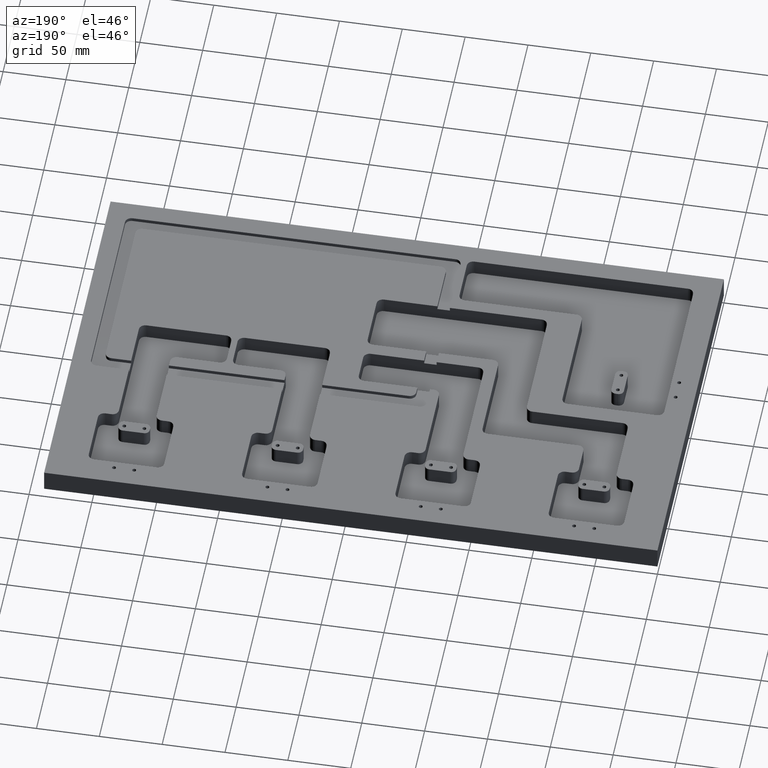
[diagram: clean part render]
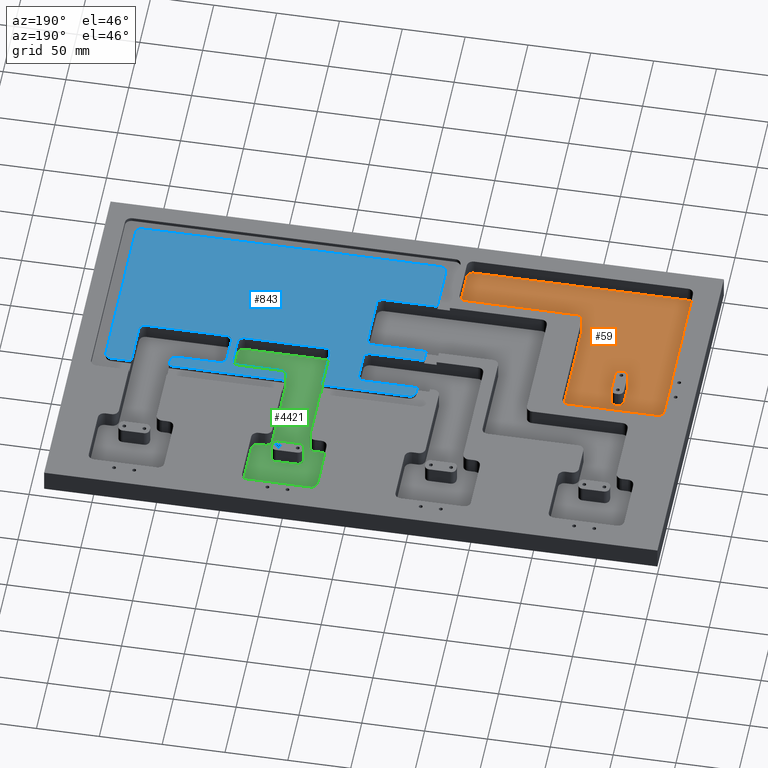
[diagram: same view with three faces highlighted in distinct colors, each labeled with its STEP entity id]
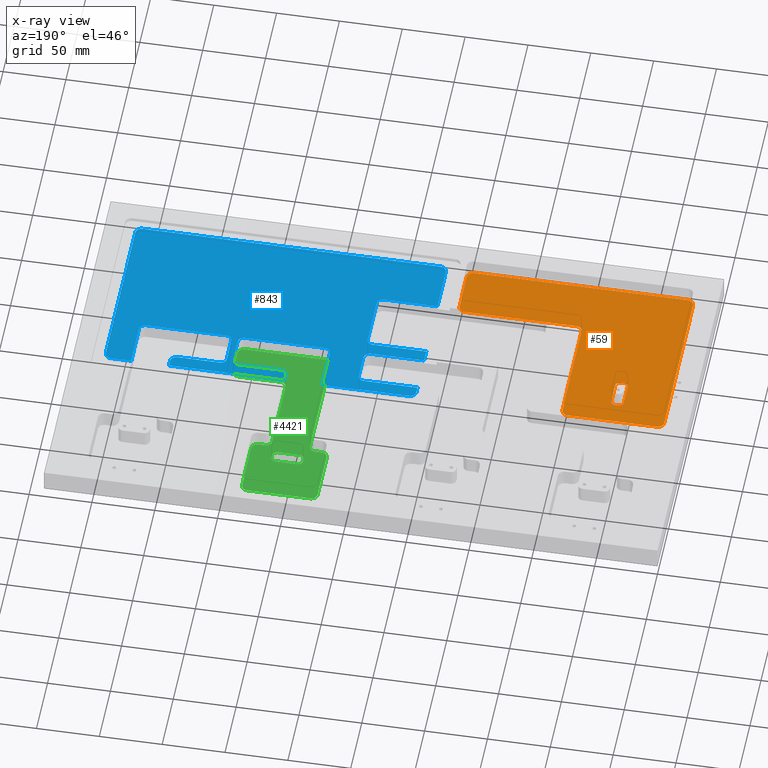
[diagram: x-ray of the same camera — body ghosted, the three highlighted faces saturated]
A machine part, auxiliary view with three faces highlighted in distinct colors.
The next image is the same camera in x-ray (body ghosted, the three faces saturated) — at least one of them is partly hidden behind the body in this view.
Their STEP definitions:

[orange] entity #59 — the highlighted planar face has unit normal (0, 0, 1).
#59 = ADVANCED_FACE ( 'NONE', ( #1551, #1282 ), #6637, .T. ) ;
#99 = VERTEX_POINT ( 'NONE', #3242 ) ;
#119 = LINE ( 'NONE', #342, #5362 ) ;
#121 = ORIENTED_EDGE ( 'NONE', *, *, #2589, .T. ) ;
#147 = VECTOR ( 'NONE', #4219, 1000.000000000000000 ) ;
#194 = CARTESIAN_POINT ( 'NONE',  ( 195.9999999999998300, 52.99999999999993600, 4.999999999999999100 ) ) ;
#342 = CARTESIAN_POINT ( 'NONE',  ( 200.9999999999998600, 57.99999999999993600, 4.999999999999999100 ) ) ;
#413 = DIRECTION ( 'NONE',  ( 0.0000000000000000000, -1.000000000000000000, 0.0000000000000000000 ) ) ;
#420 = VERTEX_POINT ( 'NONE', #2752 ) ;
#422 = CARTESIAN_POINT ( 'NONE',  ( 65.99999999999992900, 116.4999999999999900, 4.999999999999999100 ) ) ;
#591 = DIRECTION ( 'NONE',  ( -0.0000000000000000000, 1.000000000000000000, -0.0000000000000000000 ) ) ;
#607 = AXIS2_PLACEMENT_3D ( 'NONE', #3065, #4790, #1279 ) ;
#630 = AXIS2_PLACEMENT_3D ( 'NONE', #6329, #7447, #1537 ) ;
#720 = CARTESIAN_POINT ( 'NONE',  ( 65.99999999999992900, 133.5000000000000000, 4.999999999999999100 ) ) ;
#755 = AXIS2_PLACEMENT_3D ( 'NONE', #6579, #5427, #2431 ) ;
#757 = CIRCLE ( 'NONE', #755, 4.000000000000003600 ) ;
#768 = DIRECTION ( 'NONE',  ( 0.0000000000000000000, 0.0000000000000000000, 1.000000000000000000 ) ) ;
#788 = EDGE_CURVE ( 'NONE', #420, #6809, #5413, .T. ) ;
#899 = CARTESIAN_POINT ( 'NONE',  ( 61.99999999999993600, 116.4999999999999900, 4.999999999999999100 ) ) ;
#904 = AXIS2_PLACEMENT_3D ( 'NONE', #899, #976, #6197 ) ;
#926 = DIRECTION ( 'NONE',  ( -0.0000000000000000000, 1.000000000000000000, -0.0000000000000000000 ) ) ;
#976 = DIRECTION ( 'NONE',  ( -0.0000000000000000000, -0.0000000000000000000, -1.000000000000000000 ) ) ;
#1036 = EDGE_CURVE ( 'NONE', #4650, #6031, #7599, .T. ) ;
#1068 = ORIENTED_EDGE ( 'NONE', *, *, #7233, .T. ) ;
#1273 = CARTESIAN_POINT ( 'NONE',  ( 200.9999999999998600, 52.99999999999993600, 4.999999999999999100 ) ) ;
#1279 = DIRECTION ( 'NONE',  ( 1.000000000000000000, 0.0000000000000000000, 0.0000000000000000000 ) ) ;
#1282 = FACE_OUTER_BOUND ( 'NONE', #3665, .T. ) ;
#1321 = VECTOR ( 'NONE', #591, 1000.000000000000000 ) ;
#1352 = CARTESIAN_POINT ( 'NONE',  ( 101.9999999999999300, 62.99999999999994300, 4.999999999999999100 ) ) ;
#1403 = CARTESIAN_POINT ( 'NONE',  ( 59.99999999999992200, 133.5000000000000000, 4.999999999999999100 ) ) ;
#1508 = VERTEX_POINT ( 'NONE', #5834 ) ;
#1537 = DIRECTION ( 'NONE',  ( 1.000000000000000000, 0.0000000000000000000, 0.0000000000000000000 ) ) ;
#1551 = FACE_BOUND ( 'NONE', #5819, .T. ) ;
#1561 = CARTESIAN_POINT ( 'NONE',  ( 25.99999999999991100, 14.99999999999997900, 4.999999999999999100 ) ) ;
#1578 = VERTEX_POINT ( 'NONE', #1273 ) ;
#1678 = EDGE_CURVE ( 'NONE', #1508, #3447, #3464, .T. ) ;
#1687 = LINE ( 'NONE', #3216, #5739 ) ;
#1702 = CARTESIAN_POINT ( 'NONE',  ( 101.9999999999999300, 154.9999999999999700, 4.999999999999999100 ) ) ;
#1708 = LINE ( 'NONE', #4664, #5186 ) ;
#1771 = CARTESIAN_POINT ( 'NONE',  ( 55.99999999999992200, 133.5000000000000000, 4.999999999999999100 ) ) ;
#1896 = ORIENTED_EDGE ( 'NONE', *, *, #6327, .T. ) ;
#1961 = DIRECTION ( 'NONE',  ( 0.0000000000000000000, 0.0000000000000000000, 1.000000000000000000 ) ) ;
#2009 = DIRECTION ( 'NONE',  ( 1.000000000000000000, 0.0000000000000000000, 0.0000000000000000000 ) ) ;
#2047 = ORIENTED_EDGE ( 'NONE', *, *, #3963, .T. ) ;
#2061 = ORIENTED_EDGE ( 'NONE', *, *, #5574, .T. ) ;
#2062 = CARTESIAN_POINT ( 'NONE',  ( 106.9999999999999300, 62.99999999999994300, 4.999999999999999100 ) ) ;
#2072 = LINE ( 'NONE', #6146, #6130 ) ;
#2129 = VERTEX_POINT ( 'NONE', #7177 ) ;
#2131 = EDGE_CURVE ( 'NONE', #2129, #4040, #5579, .T. ) ;
#2170 = EDGE_CURVE ( 'NONE', #4159, #2554, #6670, .T. ) ;
#2369 = DIRECTION ( 'NONE',  ( 0.0000000000000000000, 1.000000000000000000, 0.0000000000000000000 ) ) ;
#2393 = CIRCLE ( 'NONE', #5831, 3.999999999999996400 ) ;
#2431 = DIRECTION ( 'NONE',  ( 1.000000000000000000, 0.0000000000000000000, 0.0000000000000000000 ) ) ;
#2482 = ORIENTED_EDGE ( 'NONE', *, *, #2170, .T. ) ;
#2518 = DIRECTION ( 'NONE',  ( -1.000000000000000000, -0.0000000000000000000, -0.0000000000000000000 ) ) ;
#2523 = AXIS2_PLACEMENT_3D ( 'NONE', #6708, #3742, #3157 ) ;
#2530 = CARTESIAN_POINT ( 'NONE',  ( 61.99999999999993600, 133.5000000000000000, 4.999999999999999100 ) ) ;
#2554 = VERTEX_POINT ( 'NONE', #4085 ) ;
#2581 = AXIS2_PLACEMENT_3D ( 'NONE', #1403, #2619, #4365 ) ;
#2589 = EDGE_CURVE ( 'NONE', #6809, #4159, #1708, .T. ) ;
#2619 = DIRECTION ( 'NONE',  ( -0.0000000000000000000, -0.0000000000000000000, -1.000000000000000000 ) ) ;
#2706 = DIRECTION ( 'NONE',  ( -0.0000000000000000000, -0.0000000000000000000, -1.000000000000000000 ) ) ;
#2721 = LINE ( 'NONE', #1702, #5590 ) ;
#2752 = CARTESIAN_POINT ( 'NONE',  ( 106.9999999999999300, 57.99999999999993600, 4.999999999999999100 ) ) ;
#2760 = CARTESIAN_POINT ( 'NONE',  ( 25.99999999999985800, 155.0000000000000000, 4.999999999999999100 ) ) ;
#2762 = VERTEX_POINT ( 'NONE', #720 ) ;
#2763 = VECTOR ( 'NONE', #413, 1000.000000000000000 ) ;
#2924 = ORIENTED_EDGE ( 'NONE', *, *, #6060, .T. ) ;
#2945 = ORIENTED_EDGE ( 'NONE', *, *, #4122, .T. ) ;
#3016 = AXIS2_PLACEMENT_3D ( 'NONE', #194, #768, #2009 ) ;
#3065 = CARTESIAN_POINT ( 'NONE',  ( 195.9999999999998300, 19.99999999999999600, 4.999999999999999100 ) ) ;
#3074 = CARTESIAN_POINT ( 'NONE',  ( 101.9999999999999300, 57.99999999999993600, 4.999999999999999100 ) ) ;
#3113 = DIRECTION ( 'NONE',  ( -1.387778780781444500E-015, -1.000000000000000000, -0.0000000000000000000 ) ) ;
#3157 = DIRECTION ( 'NONE',  ( 1.000000000000000000, 0.0000000000000000000, 0.0000000000000000000 ) ) ;
#3216 = CARTESIAN_POINT ( 'NONE',  ( 55.99999999999990100, 112.4999999999999900, 4.999999999999999100 ) ) ;
#3221 = ORIENTED_EDGE ( 'NONE', *, *, #1036, .T. ) ;
#3242 = CARTESIAN_POINT ( 'NONE',  ( 55.99999999999990100, 116.4999999999999900, 4.999999999999999100 ) ) ;
#3257 = CIRCLE ( 'NONE', #4447, 5.000000000000000900 ) ;
#3407 = ORIENTED_EDGE ( 'NONE', *, *, #6566, .F. ) ;
#3447 = VERTEX_POINT ( 'NONE', #6455 ) ;
#3464 = LINE ( 'NONE', #4231, #4171 ) ;
#3475 = DIRECTION ( 'NONE',  ( 1.000000000000000000, 0.0000000000000000000, 0.0000000000000000000 ) ) ;
#3508 = ORIENTED_EDGE ( 'NONE', *, *, #6168, .T. ) ;
#3606 = CIRCLE ( 'NONE', #3016, 5.000000000000004400 ) ;
#3665 = EDGE_LOOP ( 'NONE', ( #121, #2482, #2945, #3221, #4405, #2924, #2061, #2047, #4450, #6462, #6760, #6902 ) ) ;
#3685 = ORIENTED_EDGE ( 'NONE', *, *, #3786, .T. ) ;
#3742 = DIRECTION ( 'NONE',  ( 0.0000000000000000000, 0.0000000000000000000, 1.000000000000000000 ) ) ;
#3745 = EDGE_CURVE ( 'NONE', #1578, #6629, #3606, .T. ) ;
#3755 = VERTEX_POINT ( 'NONE', #7313 ) ;
#3766 = EDGE_CURVE ( 'NONE', #5251, #99, #1687, .T. ) ;
#3786 = EDGE_CURVE ( 'NONE', #7464, #4040, #4137, .T. ) ;
#3817 = EDGE_CURVE ( 'NONE', #3755, #1578, #119, .T. ) ;
#3831 = EDGE_CURVE ( 'NONE', #6031, #6993, #4607, .T. ) ;
#3963 = EDGE_CURVE ( 'NONE', #6689, #3755, #4226, .T. ) ;
#4040 = VERTEX_POINT ( 'NONE', #4816 ) ;
#4056 = LINE ( 'NONE', #5837, #1321 ) ;
#4069 = AXIS2_PLACEMENT_3D ( 'NONE', #5538, #1961, #4277 ) ;
#4083 = DIRECTION ( 'NONE',  ( -1.000000000000000000, 3.426614273534430700E-016, 0.0000000000000000000 ) ) ;
#4085 = CARTESIAN_POINT ( 'NONE',  ( 96.99999999999991500, 154.9999999999999700, 4.999999999999999100 ) ) ;
#4112 = VERTEX_POINT ( 'NONE', #1561 ) ;
#4122 = EDGE_CURVE ( 'NONE', #2554, #4650, #2721, .T. ) ;
#4137 = CIRCLE ( 'NONE', #904, 3.999999999999996400 ) ;
#4159 = VERTEX_POINT ( 'NONE', #6472 ) ;
#4171 = VECTOR ( 'NONE', #2518, 1000.000000000000000 ) ;
#4219 = DIRECTION ( 'NONE',  ( 1.000000000000000000, 0.0000000000000000000, 0.0000000000000000000 ) ) ;
#4226 = CIRCLE ( 'NONE', #607, 5.000000000000004400 ) ;
#4231 = CARTESIAN_POINT ( 'NONE',  ( 55.99999999999992900, 137.5000000000000000, 4.999999999999999100 ) ) ;
#4277 = DIRECTION ( 'NONE',  ( 1.000000000000000000, 0.0000000000000000000, -0.0000000000000000000 ) ) ;
#4365 = DIRECTION ( 'NONE',  ( 1.000000000000000000, 0.0000000000000000000, 0.0000000000000000000 ) ) ;
#4379 = DIRECTION ( 'NONE',  ( 1.000000000000000000, 0.0000000000000000000, 0.0000000000000000000 ) ) ;
#4405 = ORIENTED_EDGE ( 'NONE', *, *, #3831, .T. ) ;
#4447 = AXIS2_PLACEMENT_3D ( 'NONE', #6412, #4671, #3475 ) ;
#4450 = ORIENTED_EDGE ( 'NONE', *, *, #3817, .T. ) ;
#4607 = LINE ( 'NONE', #5701, #2763 ) ;
#4650 = VERTEX_POINT ( 'NONE', #2760 ) ;
#4656 = CARTESIAN_POINT ( 'NONE',  ( 195.9999999999998300, 57.99999999999993600, 4.999999999999999100 ) ) ;
#4664 = CARTESIAN_POINT ( 'NONE',  ( 101.9999999999999300, 95.00000000000001400, 4.999999999999999100 ) ) ;
#4671 = DIRECTION ( 'NONE',  ( 0.0000000000000000000, 0.0000000000000000000, 1.000000000000000000 ) ) ;
#4718 = CIRCLE ( 'NONE', #2581, 3.999999999999996400 ) ;
#4790 = DIRECTION ( 'NONE',  ( 0.0000000000000000000, 0.0000000000000000000, 1.000000000000000000 ) ) ;
#4808 = CARTESIAN_POINT ( 'NONE',  ( 195.9999999999998300, 14.99999999999999800, 4.999999999999999100 ) ) ;
#4816 = CARTESIAN_POINT ( 'NONE',  ( 61.99999999999993600, 112.4999999999999900, 4.999999999999999100 ) ) ;
#5186 = VECTOR ( 'NONE', #2369, 1000.000000000000000 ) ;
#5242 = CARTESIAN_POINT ( 'NONE',  ( 20.99999999999985800, 150.0000000000000000, 4.999999999999999100 ) ) ;
#5251 = VERTEX_POINT ( 'NONE', #1771 ) ;
#5261 = LINE ( 'NONE', #3074, #5357 ) ;
#5312 = ORIENTED_EDGE ( 'NONE', *, *, #2131, .F. ) ;
#5357 = VECTOR ( 'NONE', #5507, 1000.000000000000000 ) ;
#5362 = VECTOR ( 'NONE', #926, 1000.000000000000000 ) ;
#5382 = CARTESIAN_POINT ( 'NONE',  ( 20.99999999999985800, 19.99999999999998900, 4.999999999999999100 ) ) ;
#5413 = CIRCLE ( 'NONE', #6320, 5.000000000000004400 ) ;
#5427 = DIRECTION ( 'NONE',  ( -0.0000000000000000000, -0.0000000000000000000, -1.000000000000000000 ) ) ;
#5507 = DIRECTION ( 'NONE',  ( -1.000000000000000000, -0.0000000000000000000, -0.0000000000000000000 ) ) ;
#5534 = ORIENTED_EDGE ( 'NONE', *, *, #3766, .F. ) ;
#5538 = CARTESIAN_POINT ( 'NONE',  ( 0.0000000000000000000, 0.0000000000000000000, 4.999999999999999100 ) ) ;
#5574 = EDGE_CURVE ( 'NONE', #4112, #6689, #2072, .T. ) ;
#5579 = LINE ( 'NONE', #5998, #147 ) ;
#5590 = VECTOR ( 'NONE', #4083, 1000.000000000000000 ) ;
#5701 = CARTESIAN_POINT ( 'NONE',  ( 20.99999999999985800, 155.0000000000000000, 4.999999999999999100 ) ) ;
#5739 = VECTOR ( 'NONE', #3113, 1000.000000000000000 ) ;
#5819 = EDGE_LOOP ( 'NONE', ( #3407, #3685, #5312, #3508, #5534, #1896, #5908, #1068 ) ) ;
#5831 = AXIS2_PLACEMENT_3D ( 'NONE', #2530, #2706, #6183 ) ;
#5834 = CARTESIAN_POINT ( 'NONE',  ( 61.99999999999993600, 137.5000000000000000, 4.999999999999999100 ) ) ;
#5837 = CARTESIAN_POINT ( 'NONE',  ( 65.99999999999992900, 137.5000000000000000, 4.999999999999999100 ) ) ;
#5908 = ORIENTED_EDGE ( 'NONE', *, *, #1678, .F. ) ;
#5998 = CARTESIAN_POINT ( 'NONE',  ( 55.99999999999990100, 112.4999999999999900, 4.999999999999999100 ) ) ;
#6031 = VERTEX_POINT ( 'NONE', #5242 ) ;
#6060 = EDGE_CURVE ( 'NONE', #6993, #4112, #3257, .T. ) ;
#6087 = DIRECTION ( 'NONE',  ( 1.000000000000000000, 1.060108790874715600E-016, -0.0000000000000000000 ) ) ;
#6130 = VECTOR ( 'NONE', #6087, 1000.000000000000000 ) ;
#6146 = CARTESIAN_POINT ( 'NONE',  ( 200.9999999999998600, 14.99999999999999800, 4.999999999999999100 ) ) ;
#6168 = EDGE_CURVE ( 'NONE', #2129, #99, #757, .T. ) ;
#6183 = DIRECTION ( 'NONE',  ( 1.000000000000000000, 0.0000000000000000000, 0.0000000000000000000 ) ) ;
#6197 = DIRECTION ( 'NONE',  ( 1.000000000000000000, 0.0000000000000000000, 0.0000000000000000000 ) ) ;
#6320 = AXIS2_PLACEMENT_3D ( 'NONE', #2062, #6742, #4379 ) ;
#6327 = EDGE_CURVE ( 'NONE', #5251, #3447, #4718, .T. ) ;
#6329 = CARTESIAN_POINT ( 'NONE',  ( 25.99999999999985800, 150.0000000000000000, 4.999999999999999100 ) ) ;
#6412 = CARTESIAN_POINT ( 'NONE',  ( 25.99999999999985800, 19.99999999999997900, 4.999999999999999100 ) ) ;
#6455 = CARTESIAN_POINT ( 'NONE',  ( 59.99999999999992200, 137.5000000000000000, 4.999999999999999100 ) ) ;
#6462 = ORIENTED_EDGE ( 'NONE', *, *, #3745, .T. ) ;
#6472 = CARTESIAN_POINT ( 'NONE',  ( 101.9999999999999300, 149.9999999999999700, 4.999999999999999100 ) ) ;
#6566 = EDGE_CURVE ( 'NONE', #7464, #2762, #4056, .T. ) ;
#6579 = CARTESIAN_POINT ( 'NONE',  ( 59.99999999999990100, 116.4999999999999900, 4.999999999999999100 ) ) ;
#6629 = VERTEX_POINT ( 'NONE', #4656 ) ;
#6637 = PLANE ( 'NONE',  #4069 ) ;
#6670 = CIRCLE ( 'NONE', #2523, 5.000000000000004400 ) ;
#6689 = VERTEX_POINT ( 'NONE', #4808 ) ;
#6708 = CARTESIAN_POINT ( 'NONE',  ( 96.99999999999991500, 149.9999999999999700, 4.999999999999999100 ) ) ;
#6742 = DIRECTION ( 'NONE',  ( -0.0000000000000000000, -0.0000000000000000000, -1.000000000000000000 ) ) ;
#6760 = ORIENTED_EDGE ( 'NONE', *, *, #7189, .T. ) ;
#6809 = VERTEX_POINT ( 'NONE', #1352 ) ;
#6902 = ORIENTED_EDGE ( 'NONE', *, *, #788, .T. ) ;
#6993 = VERTEX_POINT ( 'NONE', #5382 ) ;
#7177 = CARTESIAN_POINT ( 'NONE',  ( 59.99999999999990100, 112.4999999999999900, 4.999999999999999100 ) ) ;
#7189 = EDGE_CURVE ( 'NONE', #6629, #420, #5261, .T. ) ;
#7233 = EDGE_CURVE ( 'NONE', #1508, #2762, #2393, .T. ) ;
#7313 = CARTESIAN_POINT ( 'NONE',  ( 200.9999999999998600, 20.00000000000001100, 4.999999999999999100 ) ) ;
#7447 = DIRECTION ( 'NONE',  ( 0.0000000000000000000, 0.0000000000000000000, 1.000000000000000000 ) ) ;
#7464 = VERTEX_POINT ( 'NONE', #422 ) ;
#7599 = CIRCLE ( 'NONE', #630, 5.000000000000000900 ) ;

[blue] entity #843 — the highlighted planar face has unit normal (0, 0, -1).
#7 = CARTESIAN_POINT ( 'NONE',  ( 319.9999999999999400, 167.9999999999999700, 18.00000000000000000 ) ) ;
#9 = EDGE_CURVE ( 'NONE', #2472, #195, #273, .T. ) ;
#35 = ORIENTED_EDGE ( 'NONE', *, *, #3648, .T. ) ;
#36 = LINE ( 'NONE', #5014, #1962 ) ;
#68 = CARTESIAN_POINT ( 'NONE',  ( 258.4999999999999400, 112.9999999999999400, 18.00000000000000000 ) ) ;
#81 = EDGE_CURVE ( 'NONE', #2159, #228, #1275, .T. ) ;
#82 = EDGE_CURVE ( 'NONE', #5206, #5906, #1644, .T. ) ;
#125 = LINE ( 'NONE', #4823, #1957 ) ;
#138 = VECTOR ( 'NONE', #7466, 1000.000000000000000 ) ;
#162 = VECTOR ( 'NONE', #5691, 1000.000000000000000 ) ;
#192 = ORIENTED_EDGE ( 'NONE', *, *, #3500, .F. ) ;
#195 = VERTEX_POINT ( 'NONE', #407 ) ;
#196 = DIRECTION ( 'NONE',  ( -1.000000000000000000, 0.0000000000000000000, 0.0000000000000000000 ) ) ;
#218 = DIRECTION ( 'NONE',  ( 1.940949343750273800E-016, -1.000000000000000000, 0.0000000000000000000 ) ) ;
#228 = VERTEX_POINT ( 'NONE', #1069 ) ;
#235 = AXIS2_PLACEMENT_3D ( 'NONE', #5923, #7075, #1260 ) ;
#257 = CIRCLE ( 'NONE', #3400, 5.000000000000004400 ) ;
#264 = DIRECTION ( 'NONE',  ( -0.0000000000000000000, 1.000000000000000000, -0.0000000000000000000 ) ) ;
#273 = LINE ( 'NONE', #6133, #6800 ) ;
#313 = EDGE_CURVE ( 'NONE', #474, #5070, #2549, .T. ) ;
#331 = CIRCLE ( 'NONE', #1499, 5.000000000000004400 ) ;
#352 = ORIENTED_EDGE ( 'NONE', *, *, #6667, .F. ) ;
#355 = DIRECTION ( 'NONE',  ( 1.000000000000000000, -3.776268791242031300E-016, -0.0000000000000000000 ) ) ;
#407 = CARTESIAN_POINT ( 'NONE',  ( 358.5000000000000000, 127.9999999999999700, 18.00000000000000000 ) ) ;
#436 = VECTOR ( 'NONE', #264, 1000.000000000000000 ) ;
#474 = VERTEX_POINT ( 'NONE', #2908 ) ;
#475 = CARTESIAN_POINT ( 'NONE',  ( 289.9999999999999400, 167.9999999999999700, 18.00000000000000000 ) ) ;
#502 = EDGE_CURVE ( 'NONE', #5248, #195, #257, .T. ) ;
#521 = VECTOR ( 'NONE', #5697, 1000.000000000000000 ) ;
#588 = CIRCLE ( 'NONE', #3172, 5.000000000000004400 ) ;
#654 = AXIS2_PLACEMENT_3D ( 'NONE', #2407, #7129, #4170 ) ;
#673 = EDGE_CURVE ( 'NONE', #5955, #4321, #1916, .T. ) ;
#692 = AXIS2_PLACEMENT_3D ( 'NONE', #68, #4144, #3022 ) ;
#694 = DIRECTION ( 'NONE',  ( 1.000000000000000000, 0.0000000000000000000, 0.0000000000000000000 ) ) ;
#707 = DIRECTION ( 'NONE',  ( 1.000000000000000000, 3.776268791242031300E-016, 0.0000000000000000000 ) ) ;
#712 = CARTESIAN_POINT ( 'NONE',  ( 215.9999999999998300, 167.9999999999999700, 18.00000000000000000 ) ) ;
#722 = CARTESIAN_POINT ( 'NONE',  ( 220.9999999999998600, 25.00000000000000000, 18.00000000000000000 ) ) ;
#742 = CARTESIAN_POINT ( 'NONE',  ( 215.9999999999998300, 167.9999999999999700, 18.00000000000000000 ) ) ;
#771 = VECTOR ( 'NONE', #5474, 1000.000000000000000 ) ;
#827 = VERTEX_POINT ( 'NONE', #6108 ) ;
#842 = AXIS2_PLACEMENT_3D ( 'NONE', #5301, #1207, #5326 ) ;
#843 = ADVANCED_FACE ( 'NONE', ( #3915 ), #3747, .F. ) ;
#845 = EDGE_CURVE ( 'NONE', #2299, #4410, #7347, .T. ) ;
#856 = ORIENTED_EDGE ( 'NONE', *, *, #313, .T. ) ;
#876 = VECTOR ( 'NONE', #5547, 1000.000000000000000 ) ;
#893 = CARTESIAN_POINT ( 'NONE',  ( 442.0000000000000000, 132.9999999999999400, 18.00000000000000000 ) ) ;
#918 = CARTESIAN_POINT ( 'NONE',  ( 215.9999999999998300, 127.9999999999999400, 18.00000000000000000 ) ) ;
#948 = VECTOR ( 'NONE', #3117, 1000.000000000000000 ) ;
#975 = EDGE_LOOP ( 'NONE', ( #35, #6095, #856, #7409, #3460, #2321, #999, #192, #1851, #352, #1088, #7251, #5189, #3137, #3596, #1467, #6340, #5260, #4916, #1572, #6110, #7428, #6633, #4859, #7323, #2035, #6407, #4498, #3098, #2337, #5997, #3694, #4275, #6569, #1090, #5738, #1846, #6488, #5420, #3110 ) ) ;
#999 = ORIENTED_EDGE ( 'NONE', *, *, #2879, .T. ) ;
#1011 = VERTEX_POINT ( 'NONE', #4198 ) ;
#1032 = DIRECTION ( 'NONE',  ( -0.0000000000000000000, -0.0000000000000000000, 1.000000000000000000 ) ) ;
#1039 = CARTESIAN_POINT ( 'NONE',  ( 412.0000000000000000, 227.9999999999999700, 18.00000000000000000 ) ) ;
#1054 = CARTESIAN_POINT ( 'NONE',  ( 215.9999999999998600, 67.99999999999994300, 18.00000000000000000 ) ) ;
#1066 = VECTOR ( 'NONE', #4556, 1000.000000000000000 ) ;
#1069 = CARTESIAN_POINT ( 'NONE',  ( 263.4999999999999400, 152.9999999999999700, 18.00000000000000000 ) ) ;
#1076 = EDGE_CURVE ( 'NONE', #4968, #6045, #7420, .T. ) ;
#1088 = ORIENTED_EDGE ( 'NONE', *, *, #2089, .T. ) ;
#1090 = ORIENTED_EDGE ( 'NONE', *, *, #6544, .T. ) ;
#1098 = CARTESIAN_POINT ( 'NONE',  ( 412.0000000000000000, 162.9999999999999700, 18.00000000000000000 ) ) ;
#1101 = CARTESIAN_POINT ( 'NONE',  ( 320.0000000000000000, 227.9999999999999700, 18.00000000000000000 ) ) ;
#1145 = EDGE_CURVE ( 'NONE', #7615, #4357, #4369, .T. ) ;
#1192 = CARTESIAN_POINT ( 'NONE',  ( 358.5000000000000000, 152.9999999999999700, 18.00000000000000000 ) ) ;
#1207 = DIRECTION ( 'NONE',  ( 0.0000000000000000000, 0.0000000000000000000, -1.000000000000000000 ) ) ;
#1226 = LINE ( 'NONE', #4264, #771 ) ;
#1232 = EDGE_CURVE ( 'NONE', #1011, #6983, #1262, .T. ) ;
#1245 = CIRCLE ( 'NONE', #3109, 5.000000000000004400 ) ;
#1260 = DIRECTION ( 'NONE',  ( -1.000000000000000000, 0.0000000000000000000, 0.0000000000000000000 ) ) ;
#1262 = LINE ( 'NONE', #1039, #1066 ) ;
#1275 = CIRCLE ( 'NONE', #7248, 5.000000000000004400 ) ;
#1307 = AXIS2_PLACEMENT_3D ( 'NONE', #2460, #6587, #5485 ) ;
#1332 = LINE ( 'NONE', #2990, #6756 ) ;
#1376 = EDGE_CURVE ( 'NONE', #2472, #1787, #4361, .T. ) ;
#1467 = ORIENTED_EDGE ( 'NONE', *, *, #5722, .T. ) ;
#1479 = VERTEX_POINT ( 'NONE', #1694 ) ;
#1497 = LINE ( 'NONE', #2516, #3337 ) ;
#1499 = AXIS2_PLACEMENT_3D ( 'NONE', #5443, #2444, #1914 ) ;
#1548 = VERTEX_POINT ( 'NONE', #6540 ) ;
#1572 = ORIENTED_EDGE ( 'NONE', *, *, #4468, .T. ) ;
#1613 = CARTESIAN_POINT ( 'NONE',  ( 462.9999999999999400, 30.00000000000000000, 18.00000000000000000 ) ) ;
#1614 = CARTESIAN_POINT ( 'NONE',  ( 407.0000000000000000, 157.9999999999999700, 18.00000000000000000 ) ) ;
#1635 = DIRECTION ( 'NONE',  ( -1.000000000000000000, 0.0000000000000000000, 0.0000000000000000000 ) ) ;
#1644 = LINE ( 'NONE', #4952, #436 ) ;
#1656 = EDGE_CURVE ( 'NONE', #1858, #827, #2615, .T. ) ;
#1694 = CARTESIAN_POINT ( 'NONE',  ( 320.0000000000000000, 162.9999999999999700, 18.00000000000000000 ) ) ;
#1695 = LINE ( 'NONE', #7170, #4984 ) ;
#1715 = DIRECTION ( 'NONE',  ( -0.0000000000000000000, 1.000000000000000000, -0.0000000000000000000 ) ) ;
#1723 = EDGE_CURVE ( 'NONE', #7380, #6983, #1245, .T. ) ;
#1744 = CARTESIAN_POINT ( 'NONE',  ( 358.5000000000000000, 132.9999999999999700, 18.00000000000000000 ) ) ;
#1779 = LINE ( 'NONE', #712, #3428 ) ;
#1787 = VERTEX_POINT ( 'NONE', #7413 ) ;
#1846 = ORIENTED_EDGE ( 'NONE', *, *, #502, .T. ) ;
#1851 = ORIENTED_EDGE ( 'NONE', *, *, #673, .T. ) ;
#1855 = VECTOR ( 'NONE', #3792, 1000.000000000000000 ) ;
#1858 = VERTEX_POINT ( 'NONE', #1054 ) ;
#1906 = CARTESIAN_POINT ( 'NONE',  ( 457.9999999999999400, 25.00000000000000000, 18.00000000000000000 ) ) ;
#1914 = DIRECTION ( 'NONE',  ( -1.000000000000000000, 0.0000000000000000000, 0.0000000000000000000 ) ) ;
#1916 = LINE ( 'NONE', #6032, #6432 ) ;
#1957 = VECTOR ( 'NONE', #6047, 1000.000000000000000 ) ;
#1962 = VECTOR ( 'NONE', #4571, 1000.000000000000000 ) ;
#2035 = ORIENTED_EDGE ( 'NONE', *, *, #2697, .F. ) ;
#2076 = EDGE_CURVE ( 'NONE', #7615, #7445, #2695, .T. ) ;
#2089 = EDGE_CURVE ( 'NONE', #3582, #6675, #7582, .T. ) ;
#2126 = CIRCLE ( 'NONE', #4870, 5.000000000000004400 ) ;
#2150 = VERTEX_POINT ( 'NONE', #1906 ) ;
#2152 = CIRCLE ( 'NONE', #7611, 5.000000000000004400 ) ;
#2159 = VERTEX_POINT ( 'NONE', #5972 ) ;
#2207 = CARTESIAN_POINT ( 'NONE',  ( 220.9999999999998300, 167.9999999999999700, 18.00000000000000000 ) ) ;
#2225 = CARTESIAN_POINT ( 'NONE',  ( 325.0000000000000000, 162.9999999999999700, 18.00000000000000000 ) ) ;
#2299 = VERTEX_POINT ( 'NONE', #893 ) ;
#2321 = ORIENTED_EDGE ( 'NONE', *, *, #3531, .F. ) ;
#2337 = ORIENTED_EDGE ( 'NONE', *, *, #1232, .F. ) ;
#2341 = DIRECTION ( 'NONE',  ( -1.000000000000000000, 0.0000000000000000000, 0.0000000000000000000 ) ) ;
#2381 = VERTEX_POINT ( 'NONE', #7426 ) ;
#2407 = CARTESIAN_POINT ( 'NONE',  ( 220.9999999999998600, 30.00000000000000000, 18.00000000000000000 ) ) ;
#2444 = DIRECTION ( 'NONE',  ( 0.0000000000000000000, 0.0000000000000000000, -1.000000000000000000 ) ) ;
#2460 = CARTESIAN_POINT ( 'NONE',  ( 457.9999999999999400, 30.00000000000000400, 18.00000000000000000 ) ) ;
#2472 = VERTEX_POINT ( 'NONE', #3980 ) ;
#2481 = CARTESIAN_POINT ( 'NONE',  ( 368.5000000000000000, 152.9999999999999700, 18.00000000000000000 ) ) ;
#2499 = CARTESIAN_POINT ( 'NONE',  ( 363.5000000000000000, 152.9999999999999700, 18.00000000000000000 ) ) ;
#2508 = LINE ( 'NONE', #7070, #6028 ) ;
#2516 = CARTESIAN_POINT ( 'NONE',  ( 158.0000000000000000, 117.9999999999999600, 18.00000000000000000 ) ) ;
#2526 = AXIS2_PLACEMENT_3D ( 'NONE', #2225, #5907, #4100 ) ;
#2549 = LINE ( 'NONE', #5240, #5419 ) ;
#2591 = CARTESIAN_POINT ( 'NONE',  ( 407.0000000000000000, 162.9999999999999700, 18.00000000000000000 ) ) ;
#2601 = CIRCLE ( 'NONE', #1307, 5.000000000000004400 ) ;
#2615 = LINE ( 'NONE', #742, #876 ) ;
#2629 = EDGE_CURVE ( 'NONE', #7418, #1787, #2508, .T. ) ;
#2695 = CIRCLE ( 'NONE', #842, 5.000000000000004400 ) ;
#2697 = EDGE_CURVE ( 'NONE', #4737, #7445, #1226, .T. ) ;
#2740 = VERTEX_POINT ( 'NONE', #2499 ) ;
#2855 = VECTOR ( 'NONE', #1715, 1000.000000000000000 ) ;
#2860 = LINE ( 'NONE', #3112, #3867 ) ;
#2877 = LINE ( 'NONE', #7319, #5000 ) ;
#2878 = CARTESIAN_POINT ( 'NONE',  ( 363.5000000000000000, 132.9999999999999700, 18.00000000000000000 ) ) ;
#2879 = EDGE_CURVE ( 'NONE', #1548, #4689, #588, .T. ) ;
#2908 = CARTESIAN_POINT ( 'NONE',  ( 215.9999999999998300, 162.9999999999999700, 18.00000000000000000 ) ) ;
#2989 = EDGE_CURVE ( 'NONE', #7380, #3588, #4634, .T. ) ;
#2990 = CARTESIAN_POINT ( 'NONE',  ( 215.9999999999998600, 25.00000000000000000, 18.00000000000000000 ) ) ;
#3007 = DIRECTION ( 'NONE',  ( -1.000000000000000000, -0.0000000000000000000, -0.0000000000000000000 ) ) ;
#3022 = DIRECTION ( 'NONE',  ( -1.000000000000000000, 0.0000000000000000000, 0.0000000000000000000 ) ) ;
#3087 = CARTESIAN_POINT ( 'NONE',  ( 263.4999999999999400, 112.9999999999999400, 18.00000000000000000 ) ) ;
#3091 = EDGE_CURVE ( 'NONE', #2150, #5206, #2601, .T. ) ;
#3097 = DIRECTION ( 'NONE',  ( 1.000000000000000000, 0.0000000000000000000, 0.0000000000000000000 ) ) ;
#3098 = ORIENTED_EDGE ( 'NONE', *, *, #1723, .T. ) ;
#3109 = AXIS2_PLACEMENT_3D ( 'NONE', #2591, #3775, #6718 ) ;
#3110 = ORIENTED_EDGE ( 'NONE', *, *, #2629, .F. ) ;
#3112 = CARTESIAN_POINT ( 'NONE',  ( 363.5000000000000000, 127.9999999999999700, 18.00000000000000000 ) ) ;
#3117 = DIRECTION ( 'NONE',  ( -1.000000000000000000, -0.0000000000000000000, -0.0000000000000000000 ) ) ;
#3137 = ORIENTED_EDGE ( 'NONE', *, *, #5516, .F. ) ;
#3172 = AXIS2_PLACEMENT_3D ( 'NONE', #4942, #4315, #3198 ) ;
#3198 = DIRECTION ( 'NONE',  ( -1.000000000000000000, 0.0000000000000000000, 0.0000000000000000000 ) ) ;
#3290 = CARTESIAN_POINT ( 'NONE',  ( 441.9999999999999400, 127.9999999999999400, 18.00000000000000000 ) ) ;
#3337 = VECTOR ( 'NONE', #3007, 1000.000000000000000 ) ;
#3366 = AXIS2_PLACEMENT_3D ( 'NONE', #4990, #6252, #7350 ) ;
#3372 = VERTEX_POINT ( 'NONE', #2207 ) ;
#3400 = AXIS2_PLACEMENT_3D ( 'NONE', #1744, #4729, #4148 ) ;
#3428 = VECTOR ( 'NONE', #5440, 1000.000000000000000 ) ;
#3460 = ORIENTED_EDGE ( 'NONE', *, *, #81, .T. ) ;
#3495 = DIRECTION ( 'NONE',  ( -1.000000000000000000, 0.0000000000000000000, 0.0000000000000000000 ) ) ;
#3500 = EDGE_CURVE ( 'NONE', #5955, #4689, #1695, .T. ) ;
#3513 = VERTEX_POINT ( 'NONE', #722 ) ;
#3531 = EDGE_CURVE ( 'NONE', #1548, #228, #125, .T. ) ;
#3582 = VERTEX_POINT ( 'NONE', #4319 ) ;
#3588 = VERTEX_POINT ( 'NONE', #7300 ) ;
#3596 = ORIENTED_EDGE ( 'NONE', *, *, #1656, .T. ) ;
#3648 = EDGE_CURVE ( 'NONE', #7418, #3372, #1779, .T. ) ;
#3694 = ORIENTED_EDGE ( 'NONE', *, *, #3909, .F. ) ;
#3747 = PLANE ( 'NONE',  #3787 ) ;
#3752 = DIRECTION ( 'NONE',  ( 1.000000000000000000, 1.024190982126528500E-016, -0.0000000000000000000 ) ) ;
#3775 = DIRECTION ( 'NONE',  ( -0.0000000000000000000, -0.0000000000000000000, 1.000000000000000000 ) ) ;
#3776 = LINE ( 'NONE', #6838, #1855 ) ;
#3787 = AXIS2_PLACEMENT_3D ( 'NONE', #5028, #6244, #5649 ) ;
#3792 = DIRECTION ( 'NONE',  ( -1.000000000000000000, -0.0000000000000000000, -0.0000000000000000000 ) ) ;
#3814 = CARTESIAN_POINT ( 'NONE',  ( 215.9999999999998300, 157.9999999999999700, 18.00000000000000000 ) ) ;
#3820 = DIRECTION ( 'NONE',  ( -1.000000000000000000, 0.0000000000000000000, 0.0000000000000000000 ) ) ;
#3844 = CARTESIAN_POINT ( 'NONE',  ( 442.0000000000000000, 227.9999999999999700, 18.00000000000000000 ) ) ;
#3867 = VECTOR ( 'NONE', #6385, 1000.000000000000000 ) ;
#3909 = EDGE_CURVE ( 'NONE', #1479, #6106, #6372, .T. ) ;
#3915 = FACE_OUTER_BOUND ( 'NONE', #975, .T. ) ;
#3980 = CARTESIAN_POINT ( 'NONE',  ( 295.0000000000000000, 127.9999999999999400, 18.00000000000000000 ) ) ;
#4007 = EDGE_CURVE ( 'NONE', #3513, #2150, #1332, .T. ) ;
#4014 = CARTESIAN_POINT ( 'NONE',  ( 258.4999999999999400, 127.9999999999999400, 18.00000000000000000 ) ) ;
#4088 = DIRECTION ( 'NONE',  ( 1.940949343750273800E-016, -1.000000000000000000, 0.0000000000000000000 ) ) ;
#4100 = DIRECTION ( 'NONE',  ( -1.000000000000000000, 0.0000000000000000000, 0.0000000000000000000 ) ) ;
#4102 = DIRECTION ( 'NONE',  ( 0.0000000000000000000, 0.0000000000000000000, -1.000000000000000000 ) ) ;
#4124 = CARTESIAN_POINT ( 'NONE',  ( 258.4999999999999400, 67.99999999999994300, 18.00000000000000000 ) ) ;
#4144 = DIRECTION ( 'NONE',  ( 0.0000000000000000000, 0.0000000000000000000, -1.000000000000000000 ) ) ;
#4148 = DIRECTION ( 'NONE',  ( -1.000000000000000000, 0.0000000000000000000, 0.0000000000000000000 ) ) ;
#4170 = DIRECTION ( 'NONE',  ( -1.000000000000000000, 0.0000000000000000000, 0.0000000000000000000 ) ) ;
#4198 = CARTESIAN_POINT ( 'NONE',  ( 411.9999999999999400, 167.9999999999999700, 18.00000000000000000 ) ) ;
#4264 = CARTESIAN_POINT ( 'NONE',  ( 368.5000000000000000, 127.9999999999999700, 18.00000000000000000 ) ) ;
#4275 = ORIENTED_EDGE ( 'NONE', *, *, #5196, .T. ) ;
#4292 = CARTESIAN_POINT ( 'NONE',  ( 358.5000000000000000, 157.9999999999999700, 18.00000000000000000 ) ) ;
#4315 = DIRECTION ( 'NONE',  ( 0.0000000000000000000, 0.0000000000000000000, -1.000000000000000000 ) ) ;
#4319 = CARTESIAN_POINT ( 'NONE',  ( 258.4999999999999400, 117.9999999999999600, 18.00000000000000000 ) ) ;
#4321 = VERTEX_POINT ( 'NONE', #6453 ) ;
#4330 = CIRCLE ( 'NONE', #235, 5.000000000000004400 ) ;
#4357 = VERTEX_POINT ( 'NONE', #6016 ) ;
#4361 = CIRCLE ( 'NONE', #3366, 5.000000000000004400 ) ;
#4369 = LINE ( 'NONE', #3290, #6782 ) ;
#4393 = CARTESIAN_POINT ( 'NONE',  ( 457.9999999999998900, 167.9999999999999700, 18.00000000000000000 ) ) ;
#4410 = VERTEX_POINT ( 'NONE', #6752 ) ;
#4434 = VERTEX_POINT ( 'NONE', #4393 ) ;
#4460 = CARTESIAN_POINT ( 'NONE',  ( 258.4999999999999400, 152.9999999999999700, 18.00000000000000000 ) ) ;
#4468 = EDGE_CURVE ( 'NONE', #5906, #4434, #7241, .T. ) ;
#4498 = ORIENTED_EDGE ( 'NONE', *, *, #2989, .F. ) ;
#4502 = CARTESIAN_POINT ( 'NONE',  ( 368.5000000000000000, 132.9999999999999700, 18.00000000000000000 ) ) ;
#4550 = CARTESIAN_POINT ( 'NONE',  ( 457.9999999999999400, 162.9999999999999700, 18.00000000000000000 ) ) ;
#4556 = DIRECTION ( 'NONE',  ( 2.312964634635743000E-016, -1.000000000000000000, 0.0000000000000000000 ) ) ;
#4571 = DIRECTION ( 'NONE',  ( -0.0000000000000000000, 1.000000000000000000, -0.0000000000000000000 ) ) ;
#4621 = CIRCLE ( 'NONE', #5610, 5.000000000000004400 ) ;
#4634 = LINE ( 'NONE', #5091, #138 ) ;
#4646 = CARTESIAN_POINT ( 'NONE',  ( 220.9999999999998300, 162.9999999999999700, 18.00000000000000000 ) ) ;
#4689 = VERTEX_POINT ( 'NONE', #4014 ) ;
#4707 = DIRECTION ( 'NONE',  ( -1.000000000000000000, 0.0000000000000000000, 0.0000000000000000000 ) ) ;
#4729 = DIRECTION ( 'NONE',  ( 0.0000000000000000000, 0.0000000000000000000, -1.000000000000000000 ) ) ;
#4737 = VERTEX_POINT ( 'NONE', #2481 ) ;
#4823 = CARTESIAN_POINT ( 'NONE',  ( 263.4999999999999400, 127.9999999999999400, 18.00000000000000000 ) ) ;
#4859 = ORIENTED_EDGE ( 'NONE', *, *, #1145, .F. ) ;
#4870 = AXIS2_PLACEMENT_3D ( 'NONE', #6471, #4102, #2341 ) ;
#4887 = CARTESIAN_POINT ( 'NONE',  ( 215.9999999999998300, 167.9999999999999700, 18.00000000000000000 ) ) ;
#4911 = CARTESIAN_POINT ( 'NONE',  ( 263.4999999999999400, 67.99999999999994300, 18.00000000000000000 ) ) ;
#4916 = ORIENTED_EDGE ( 'NONE', *, *, #82, .T. ) ;
#4942 = CARTESIAN_POINT ( 'NONE',  ( 258.4999999999999400, 132.9999999999999400, 18.00000000000000000 ) ) ;
#4952 = CARTESIAN_POINT ( 'NONE',  ( 462.9999999999999400, 167.9999999999999700, 18.00000000000000000 ) ) ;
#4968 = VERTEX_POINT ( 'NONE', #4292 ) ;
#4984 = VECTOR ( 'NONE', #3097, 1000.000000000000000 ) ;
#4990 = CARTESIAN_POINT ( 'NONE',  ( 295.0000000000000000, 132.9999999999999400, 18.00000000000000000 ) ) ;
#5000 = VECTOR ( 'NONE', #196, 1000.000000000000000 ) ;
#5004 = DIRECTION ( 'NONE',  ( 0.0000000000000000000, 0.0000000000000000000, -1.000000000000000000 ) ) ;
#5014 = CARTESIAN_POINT ( 'NONE',  ( 263.4999999999999400, 117.9999999999999600, 18.00000000000000000 ) ) ;
#5028 = CARTESIAN_POINT ( 'NONE',  ( 0.0000000000000000000, 0.0000000000000000000, 18.00000000000000000 ) ) ;
#5070 = VERTEX_POINT ( 'NONE', #3814 ) ;
#5091 = CARTESIAN_POINT ( 'NONE',  ( 412.0000000000000600, 157.9999999999999700, 18.00000000000000000 ) ) ;
#5189 = ORIENTED_EDGE ( 'NONE', *, *, #7476, .T. ) ;
#5196 = EDGE_CURVE ( 'NONE', #1479, #6045, #6314, .T. ) ;
#5206 = VERTEX_POINT ( 'NONE', #1613 ) ;
#5240 = CARTESIAN_POINT ( 'NONE',  ( 215.9999999999998300, 167.9999999999999700, 18.00000000000000000 ) ) ;
#5248 = VERTEX_POINT ( 'NONE', #2878 ) ;
#5260 = ORIENTED_EDGE ( 'NONE', *, *, #3091, .T. ) ;
#5301 = CARTESIAN_POINT ( 'NONE',  ( 373.5000000000000000, 132.9999999999999700, 18.00000000000000000 ) ) ;
#5326 = DIRECTION ( 'NONE',  ( -1.000000000000000000, 0.0000000000000000000, 0.0000000000000000000 ) ) ;
#5419 = VECTOR ( 'NONE', #4088, 1000.000000000000000 ) ;
#5420 = ORIENTED_EDGE ( 'NONE', *, *, #1376, .T. ) ;
#5434 = EDGE_CURVE ( 'NONE', #4737, #3588, #331, .T. ) ;
#5440 = DIRECTION ( 'NONE',  ( -1.000000000000000000, -0.0000000000000000000, -0.0000000000000000000 ) ) ;
#5443 = CARTESIAN_POINT ( 'NONE',  ( 373.5000000000000000, 152.9999999999999700, 18.00000000000000000 ) ) ;
#5474 = DIRECTION ( 'NONE',  ( -0.0000000000000000000, -1.000000000000000000, -0.0000000000000000000 ) ) ;
#5485 = DIRECTION ( 'NONE',  ( -1.000000000000000000, 0.0000000000000000000, 0.0000000000000000000 ) ) ;
#5511 = EDGE_CURVE ( 'NONE', #2159, #5070, #2877, .T. ) ;
#5516 = EDGE_CURVE ( 'NONE', #1858, #6599, #6402, .T. ) ;
#5547 = DIRECTION ( 'NONE',  ( 1.940949343750273800E-016, -1.000000000000000000, 0.0000000000000000000 ) ) ;
#5610 = AXIS2_PLACEMENT_3D ( 'NONE', #1192, #7589, #4707 ) ;
#5649 = DIRECTION ( 'NONE',  ( -1.000000000000000000, 0.0000000000000000000, -0.0000000000000000000 ) ) ;
#5691 = DIRECTION ( 'NONE',  ( -1.000000000000000000, -0.0000000000000000000, -0.0000000000000000000 ) ) ;
#5693 = CARTESIAN_POINT ( 'NONE',  ( 325.0000000000000000, 157.9999999999999700, 18.00000000000000000 ) ) ;
#5697 = DIRECTION ( 'NONE',  ( -0.0000000000000000000, 1.000000000000000000, -0.0000000000000000000 ) ) ;
#5722 = EDGE_CURVE ( 'NONE', #827, #3513, #6316, .T. ) ;
#5738 = ORIENTED_EDGE ( 'NONE', *, *, #6856, .F. ) ;
#5840 = CARTESIAN_POINT ( 'NONE',  ( 373.5000000000000000, 127.9999999999999700, 18.00000000000000000 ) ) ;
#5906 = VERTEX_POINT ( 'NONE', #6842 ) ;
#5907 = DIRECTION ( 'NONE',  ( -0.0000000000000000000, -0.0000000000000000000, 1.000000000000000000 ) ) ;
#5923 = CARTESIAN_POINT ( 'NONE',  ( 437.0000000000000000, 132.9999999999999400, 18.00000000000000000 ) ) ;
#5955 = VERTEX_POINT ( 'NONE', #918 ) ;
#5972 = CARTESIAN_POINT ( 'NONE',  ( 258.4999999999999400, 157.9999999999999700, 18.00000000000000000 ) ) ;
#5997 = ORIENTED_EDGE ( 'NONE', *, *, #6264, .T. ) ;
#6016 = CARTESIAN_POINT ( 'NONE',  ( 437.0000000000000000, 127.9999999999999400, 18.00000000000000000 ) ) ;
#6028 = VECTOR ( 'NONE', #6431, 1000.000000000000000 ) ;
#6032 = CARTESIAN_POINT ( 'NONE',  ( 215.9999999999998300, 167.9999999999999700, 18.00000000000000000 ) ) ;
#6045 = VERTEX_POINT ( 'NONE', #5693 ) ;
#6047 = DIRECTION ( 'NONE',  ( 0.0000000000000000000, 1.000000000000000000, 0.0000000000000000000 ) ) ;
#6095 = ORIENTED_EDGE ( 'NONE', *, *, #6113, .T. ) ;
#6106 = VERTEX_POINT ( 'NONE', #7 ) ;
#6108 = CARTESIAN_POINT ( 'NONE',  ( 215.9999999999998600, 30.00000000000000000, 18.00000000000000000 ) ) ;
#6110 = ORIENTED_EDGE ( 'NONE', *, *, #7258, .T. ) ;
#6111 = LINE ( 'NONE', #4887, #948 ) ;
#6113 = EDGE_CURVE ( 'NONE', #3372, #474, #2152, .T. ) ;
#6133 = CARTESIAN_POINT ( 'NONE',  ( 290.0000000000000600, 127.9999999999999400, 18.00000000000000000 ) ) ;
#6244 = DIRECTION ( 'NONE',  ( 0.0000000000000000000, 0.0000000000000000000, -1.000000000000000000 ) ) ;
#6252 = DIRECTION ( 'NONE',  ( 0.0000000000000000000, 0.0000000000000000000, -1.000000000000000000 ) ) ;
#6264 = EDGE_CURVE ( 'NONE', #1011, #6106, #6111, .T. ) ;
#6301 = CARTESIAN_POINT ( 'NONE',  ( 319.9999999999999400, 157.9999999999999700, 18.00000000000000000 ) ) ;
#6314 = CIRCLE ( 'NONE', #2526, 5.000000000000004400 ) ;
#6316 = CIRCLE ( 'NONE', #654, 5.000000000000004400 ) ;
#6340 = ORIENTED_EDGE ( 'NONE', *, *, #4007, .T. ) ;
#6372 = LINE ( 'NONE', #1101, #2855 ) ;
#6385 = DIRECTION ( 'NONE',  ( 0.0000000000000000000, 1.000000000000000000, 0.0000000000000000000 ) ) ;
#6392 = AXIS2_PLACEMENT_3D ( 'NONE', #4550, #1032, #1635 ) ;
#6402 = LINE ( 'NONE', #4911, #6763 ) ;
#6407 = ORIENTED_EDGE ( 'NONE', *, *, #5434, .T. ) ;
#6431 = DIRECTION ( 'NONE',  ( 2.312964634635743000E-016, -1.000000000000000000, 0.0000000000000000000 ) ) ;
#6432 = VECTOR ( 'NONE', #218, 1000.000000000000000 ) ;
#6453 = CARTESIAN_POINT ( 'NONE',  ( 215.9999999999998300, 117.9999999999999600, 18.00000000000000000 ) ) ;
#6471 = CARTESIAN_POINT ( 'NONE',  ( 258.4999999999999400, 72.99999999999995700, 18.00000000000000000 ) ) ;
#6488 = ORIENTED_EDGE ( 'NONE', *, *, #9, .F. ) ;
#6507 = EDGE_CURVE ( 'NONE', #2381, #6675, #36, .T. ) ;
#6540 = CARTESIAN_POINT ( 'NONE',  ( 263.4999999999999400, 132.9999999999999400, 18.00000000000000000 ) ) ;
#6544 = EDGE_CURVE ( 'NONE', #4968, #2740, #4621, .T. ) ;
#6569 = ORIENTED_EDGE ( 'NONE', *, *, #1076, .F. ) ;
#6587 = DIRECTION ( 'NONE',  ( -0.0000000000000000000, -0.0000000000000000000, 1.000000000000000000 ) ) ;
#6599 = VERTEX_POINT ( 'NONE', #4124 ) ;
#6633 = ORIENTED_EDGE ( 'NONE', *, *, #7015, .T. ) ;
#6667 = EDGE_CURVE ( 'NONE', #3582, #4321, #1497, .T. ) ;
#6675 = VERTEX_POINT ( 'NONE', #3087 ) ;
#6718 = DIRECTION ( 'NONE',  ( -1.000000000000000000, 0.0000000000000000000, 0.0000000000000000000 ) ) ;
#6752 = CARTESIAN_POINT ( 'NONE',  ( 441.9999999999999400, 167.9999999999999700, 18.00000000000000000 ) ) ;
#6756 = VECTOR ( 'NONE', #694, 1000.000000000000000 ) ;
#6763 = VECTOR ( 'NONE', #3752, 1000.000000000000000 ) ;
#6782 = VECTOR ( 'NONE', #355, 1000.000000000000000 ) ;
#6800 = VECTOR ( 'NONE', #707, 1000.000000000000000 ) ;
#6838 = CARTESIAN_POINT ( 'NONE',  ( 215.9999999999998300, 167.9999999999999700, 18.00000000000000000 ) ) ;
#6842 = CARTESIAN_POINT ( 'NONE',  ( 462.9999999999999400, 162.9999999999999700, 18.00000000000000000 ) ) ;
#6856 = EDGE_CURVE ( 'NONE', #5248, #2740, #2860, .T. ) ;
#6983 = VERTEX_POINT ( 'NONE', #1098 ) ;
#7015 = EDGE_CURVE ( 'NONE', #2299, #4357, #4330, .T. ) ;
#7024 = DIRECTION ( 'NONE',  ( -0.0000000000000000000, -0.0000000000000000000, 1.000000000000000000 ) ) ;
#7070 = CARTESIAN_POINT ( 'NONE',  ( 290.0000000000000000, 227.9999999999999700, 18.00000000000000000 ) ) ;
#7075 = DIRECTION ( 'NONE',  ( 0.0000000000000000000, 0.0000000000000000000, -1.000000000000000000 ) ) ;
#7129 = DIRECTION ( 'NONE',  ( -0.0000000000000000000, -0.0000000000000000000, 1.000000000000000000 ) ) ;
#7170 = CARTESIAN_POINT ( 'NONE',  ( 168.0000000000000000, 127.9999999999999400, 18.00000000000000000 ) ) ;
#7241 = CIRCLE ( 'NONE', #6392, 5.000000000000004400 ) ;
#7248 = AXIS2_PLACEMENT_3D ( 'NONE', #4460, #5004, #3820 ) ;
#7251 = ORIENTED_EDGE ( 'NONE', *, *, #6507, .F. ) ;
#7258 = EDGE_CURVE ( 'NONE', #4434, #4410, #3776, .T. ) ;
#7300 = CARTESIAN_POINT ( 'NONE',  ( 373.5000000000000000, 157.9999999999999700, 18.00000000000000000 ) ) ;
#7319 = CARTESIAN_POINT ( 'NONE',  ( 263.4999999999999400, 157.9999999999999700, 18.00000000000000000 ) ) ;
#7323 = ORIENTED_EDGE ( 'NONE', *, *, #2076, .T. ) ;
#7347 = LINE ( 'NONE', #3844, #521 ) ;
#7350 = DIRECTION ( 'NONE',  ( -1.000000000000000000, 0.0000000000000000000, 0.0000000000000000000 ) ) ;
#7380 = VERTEX_POINT ( 'NONE', #1614 ) ;
#7409 = ORIENTED_EDGE ( 'NONE', *, *, #5511, .F. ) ;
#7413 = CARTESIAN_POINT ( 'NONE',  ( 290.0000000000000000, 132.9999999999999400, 18.00000000000000000 ) ) ;
#7418 = VERTEX_POINT ( 'NONE', #475 ) ;
#7420 = LINE ( 'NONE', #6301, #162 ) ;
#7426 = CARTESIAN_POINT ( 'NONE',  ( 263.4999999999999400, 72.99999999999995700, 18.00000000000000000 ) ) ;
#7428 = ORIENTED_EDGE ( 'NONE', *, *, #845, .F. ) ;
#7445 = VERTEX_POINT ( 'NONE', #4502 ) ;
#7466 = DIRECTION ( 'NONE',  ( -1.000000000000000000, 0.0000000000000000000, 0.0000000000000000000 ) ) ;
#7476 = EDGE_CURVE ( 'NONE', #2381, #6599, #2126, .T. ) ;
#7582 = CIRCLE ( 'NONE', #692, 5.000000000000004400 ) ;
#7589 = DIRECTION ( 'NONE',  ( 0.0000000000000000000, 0.0000000000000000000, -1.000000000000000000 ) ) ;
#7611 = AXIS2_PLACEMENT_3D ( 'NONE', #4646, #7024, #3495 ) ;
#7615 = VERTEX_POINT ( 'NONE', #5840 ) ;

[green] entity #4421 — the highlighted planar face has unit normal (-0, 0, -1).
#4 = CARTESIAN_POINT ( 'NONE',  ( 296.5000000000000000, 238.0000000000000000, 4.999999999999999100 ) ) ;
#5 = ORIENTED_EDGE ( 'NONE', *, *, #7429, .T. ) ;
#29 = CARTESIAN_POINT ( 'NONE',  ( 292.5000000000000000, 238.0000000000000000, 4.999999999999999100 ) ) ;
#109 = VERTEX_POINT ( 'NONE', #7338 ) ;
#111 = AXIS2_PLACEMENT_3D ( 'NONE', #661, #5305, #2358 ) ;
#153 = LINE ( 'NONE', #3298, #7324 ) ;
#155 = EDGE_CURVE ( 'NONE', #3838, #6917, #3834, .T. ) ;
#189 = ORIENTED_EDGE ( 'NONE', *, *, #4222, .T. ) ;
#202 = ORIENTED_EDGE ( 'NONE', *, *, #2340, .T. ) ;
#267 = DIRECTION ( 'NONE',  ( -1.000000000000000000, 0.0000000000000000000, 0.0000000000000000000 ) ) ;
#268 = ORIENTED_EDGE ( 'NONE', *, *, #4301, .T. ) ;
#287 = VERTEX_POINT ( 'NONE', #4065 ) ;
#404 = CARTESIAN_POINT ( 'NONE',  ( 296.5000000000000000, 240.0000000000000000, 4.999999999999999100 ) ) ;
#434 = VERTEX_POINT ( 'NONE', #1590 ) ;
#461 = EDGE_LOOP ( 'NONE', ( #5826, #6947, #2489, #2844, #5284, #2261, #189, #4788, #809, #2041, #5, #4703, #7285, #268, #4187, #7410, #945, #3603, #2781, #7176 ) ) ;
#524 = VERTEX_POINT ( 'NONE', #1814 ) ;
#579 = EDGE_CURVE ( 'NONE', #2440, #1803, #5509, .T. ) ;
#611 = CARTESIAN_POINT ( 'NONE',  ( 329.9999999999999400, 232.9999999999999700, 4.999999999999999100 ) ) ;
#619 = CARTESIAN_POINT ( 'NONE',  ( 313.5000000000000000, 240.0000000000000000, 4.999999999999999100 ) ) ;
#661 = CARTESIAN_POINT ( 'NONE',  ( 295.0000000000000000, 132.9999999999999400, 4.999999999999999100 ) ) ;
#681 = LINE ( 'NONE', #2415, #5496 ) ;
#690 = DIRECTION ( 'NONE',  ( -1.000000000000000000, 0.0000000000000000000, 0.0000000000000000000 ) ) ;
#767 = ORIENTED_EDGE ( 'NONE', *, *, #5794, .F. ) ;
#769 = CIRCLE ( 'NONE', #5845, 4.000000000000003600 ) ;
#809 = ORIENTED_EDGE ( 'NONE', *, *, #7535, .T. ) ;
#844 = EDGE_CURVE ( 'NONE', #2297, #2440, #892, .T. ) ;
#866 = CIRCLE ( 'NONE', #4240, 5.000000000000004400 ) ;
#881 = CIRCLE ( 'NONE', #5459, 5.000000000000004400 ) ;
#892 = LINE ( 'NONE', #2715, #2820 ) ;
#923 = CARTESIAN_POINT ( 'NONE',  ( 320.0000000000000000, 227.9999999999999700, 4.999999999999999100 ) ) ;
#945 = ORIENTED_EDGE ( 'NONE', *, *, #1224, .T. ) ;
#965 = DIRECTION ( 'NONE',  ( 0.0000000000000000000, 0.0000000000000000000, 1.000000000000000000 ) ) ;
#987 = DIRECTION ( 'NONE',  ( 0.0000000000000000000, 1.000000000000000000, 0.0000000000000000000 ) ) ;
#1050 = CARTESIAN_POINT ( 'NONE',  ( 292.5000000000000000, 244.0000000000000000, 4.999999999999999100 ) ) ;
#1071 = EDGE_CURVE ( 'NONE', #4230, #5608, #2716, .T. ) ;
#1084 = EDGE_CURVE ( 'NONE', #5608, #287, #7512, .T. ) ;
#1099 = AXIS2_PLACEMENT_3D ( 'NONE', #619, #6515, #7087 ) ;
#1119 = DIRECTION ( 'NONE',  ( 1.000000000000000000, 3.776268791242031300E-016, 0.0000000000000000000 ) ) ;
#1183 = AXIS2_PLACEMENT_3D ( 'NONE', #5780, #3318, #1569 ) ;
#1224 = EDGE_CURVE ( 'NONE', #1489, #524, #6154, .T. ) ;
#1271 = DIRECTION ( 'NONE',  ( -1.000000000000000000, -0.0000000000000000000, -0.0000000000000000000 ) ) ;
#1361 = LINE ( 'NONE', #3470, #6879 ) ;
#1489 = VERTEX_POINT ( 'NONE', #2469 ) ;
#1504 = PLANE ( 'NONE',  #6781 ) ;
#1512 = CARTESIAN_POINT ( 'NONE',  ( 358.5000000000000000, 132.9999999999999700, 4.999999999999999100 ) ) ;
#1525 = CARTESIAN_POINT ( 'NONE',  ( 334.9999999999999400, 273.9999999999999400, 4.999999999999999100 ) ) ;
#1531 = EDGE_CURVE ( 'NONE', #6917, #5043, #681, .T. ) ;
#1532 = AXIS2_PLACEMENT_3D ( 'NONE', #1512, #7424, #3914 ) ;
#1539 = DIRECTION ( 'NONE',  ( -1.000000000000000000, 0.0000000000000000000, 0.0000000000000000000 ) ) ;
#1569 = DIRECTION ( 'NONE',  ( -1.000000000000000000, 0.0000000000000000000, 0.0000000000000000000 ) ) ;
#1590 = CARTESIAN_POINT ( 'NONE',  ( 296.5000000000000000, 244.0000000000000000, 4.999999999999999100 ) ) ;
#1630 = VERTEX_POINT ( 'NONE', #3707 ) ;
#1747 = EDGE_CURVE ( 'NONE', #3708, #5999, #153, .T. ) ;
#1803 = VERTEX_POINT ( 'NONE', #7390 ) ;
#1814 = CARTESIAN_POINT ( 'NONE',  ( 285.0000000000000000, 227.9999999999999700, 4.999999999999999100 ) ) ;
#1865 = DIRECTION ( 'NONE',  ( -1.000000000000000000, -0.0000000000000000000, -0.0000000000000000000 ) ) ;
#1944 = VECTOR ( 'NONE', #4576, 1000.000000000000000 ) ;
#1971 = CARTESIAN_POINT ( 'NONE',  ( 325.0000000000000000, 227.9999999999999700, 4.999999999999999100 ) ) ;
#2041 = ORIENTED_EDGE ( 'NONE', *, *, #5627, .T. ) ;
#2043 = DIRECTION ( 'NONE',  ( -1.000000000000000000, -0.0000000000000000000, -0.0000000000000000000 ) ) ;
#2045 = VERTEX_POINT ( 'NONE', #2939 ) ;
#2082 = CARTESIAN_POINT ( 'NONE',  ( 325.0000000000000000, 162.9999999999999700, 4.999999999999999100 ) ) ;
#2203 = DIRECTION ( 'NONE',  ( -1.000000000000000000, 0.0000000000000000000, 0.0000000000000000000 ) ) ;
#2261 = ORIENTED_EDGE ( 'NONE', *, *, #5053, .T. ) ;
#2297 = VERTEX_POINT ( 'NONE', #6281 ) ;
#2340 = EDGE_CURVE ( 'NONE', #2578, #434, #769, .T. ) ;
#2358 = DIRECTION ( 'NONE',  ( -1.000000000000000000, 0.0000000000000000000, 0.0000000000000000000 ) ) ;
#2366 = DIRECTION ( 'NONE',  ( 1.000000000000000000, -0.0000000000000000000, -0.0000000000000000000 ) ) ;
#2415 = CARTESIAN_POINT ( 'NONE',  ( 275.0000000000000000, 278.9999999999999400, 4.999999999999999100 ) ) ;
#2440 = VERTEX_POINT ( 'NONE', #6968 ) ;
#2469 = CARTESIAN_POINT ( 'NONE',  ( 280.0000000000000000, 227.9999999999999700, 4.999999999999999100 ) ) ;
#2489 = ORIENTED_EDGE ( 'NONE', *, *, #1084, .T. ) ;
#2494 = LINE ( 'NONE', #1050, #2767 ) ;
#2562 = EDGE_CURVE ( 'NONE', #3319, #2609, #4249, .T. ) ;
#2578 = VERTEX_POINT ( 'NONE', #5343 ) ;
#2607 = CARTESIAN_POINT ( 'NONE',  ( 285.0000000000000000, 222.9999999999999700, 4.999999999999999100 ) ) ;
#2609 = VERTEX_POINT ( 'NONE', #29 ) ;
#2617 = ORIENTED_EDGE ( 'NONE', *, *, #5223, .T. ) ;
#2657 = VERTEX_POINT ( 'NONE', #3039 ) ;
#2676 = LINE ( 'NONE', #6619, #6836 ) ;
#2688 = LINE ( 'NONE', #6553, #5561 ) ;
#2710 = CARTESIAN_POINT ( 'NONE',  ( 334.9999999999999400, 232.9999999999999700, 4.999999999999999100 ) ) ;
#2715 = CARTESIAN_POINT ( 'NONE',  ( 290.0000000000000000, 227.9999999999999700, 4.999999999999999100 ) ) ;
#2716 = CIRCLE ( 'NONE', #1532, 5.000000000000004400 ) ;
#2748 = CARTESIAN_POINT ( 'NONE',  ( 320.0000000000000000, 162.9999999999999700, 4.999999999999999100 ) ) ;
#2767 = VECTOR ( 'NONE', #7549, 1000.000000000000000 ) ;
#2781 = ORIENTED_EDGE ( 'NONE', *, *, #844, .T. ) ;
#2789 = DIRECTION ( 'NONE',  ( -0.0000000000000000000, 1.000000000000000000, -0.0000000000000000000 ) ) ;
#2810 = CARTESIAN_POINT ( 'NONE',  ( 275.0000000000000000, 227.9999999999999700, 4.999999999999999100 ) ) ;
#2811 = VECTOR ( 'NONE', #3412, 1000.000000000000000 ) ;
#2820 = VECTOR ( 'NONE', #5133, 1000.000000000000000 ) ;
#2824 = AXIS2_PLACEMENT_3D ( 'NONE', #5744, #5150, #2203 ) ;
#2844 = ORIENTED_EDGE ( 'NONE', *, *, #3749, .T. ) ;
#2926 = CARTESIAN_POINT ( 'NONE',  ( 334.9999999999999400, 227.9999999999999700, 4.999999999999999100 ) ) ;
#2928 = DIRECTION ( 'NONE',  ( -1.000000000000000000, 0.0000000000000000000, 0.0000000000000000000 ) ) ;
#2939 = CARTESIAN_POINT ( 'NONE',  ( 313.5000000000000000, 234.0000000000000000, 4.999999999999999100 ) ) ;
#3039 = CARTESIAN_POINT ( 'NONE',  ( 317.5000000000000000, 238.0000000000000000, 4.999999999999999100 ) ) ;
#3041 = VERTEX_POINT ( 'NONE', #7006 ) ;
#3199 = DIRECTION ( 'NONE',  ( -0.0000000000000000000, -0.0000000000000000000, -1.000000000000000000 ) ) ;
#3206 = EDGE_CURVE ( 'NONE', #524, #2297, #4250, .T. ) ;
#3222 = CARTESIAN_POINT ( 'NONE',  ( 320.0000000000000000, 222.9999999999999700, 4.999999999999999100 ) ) ;
#3298 = CARTESIAN_POINT ( 'NONE',  ( 319.9999999999999400, 157.9999999999999700, 4.999999999999999100 ) ) ;
#3318 = DIRECTION ( 'NONE',  ( 0.0000000000000000000, 0.0000000000000000000, 1.000000000000000000 ) ) ;
#3319 = VERTEX_POINT ( 'NONE', #7505 ) ;
#3396 = CARTESIAN_POINT ( 'NONE',  ( 358.5000000000000000, 127.9999999999999700, 4.999999999999999100 ) ) ;
#3412 = DIRECTION ( 'NONE',  ( 1.000000000000000000, 0.0000000000000000000, 0.0000000000000000000 ) ) ;
#3434 = CARTESIAN_POINT ( 'NONE',  ( 313.5000000000000000, 244.0000000000000000, 4.999999999999999100 ) ) ;
#3444 = CARTESIAN_POINT ( 'NONE',  ( 325.0000000000000000, 157.9999999999999700, 4.999999999999999100 ) ) ;
#3470 = CARTESIAN_POINT ( 'NONE',  ( 290.0000000000000600, 127.9999999999999400, 4.999999999999999100 ) ) ;
#3509 = CARTESIAN_POINT ( 'NONE',  ( 280.0000000000000000, 232.9999999999999700, 4.999999999999999100 ) ) ;
#3523 = AXIS2_PLACEMENT_3D ( 'NONE', #2607, #4926, #4352 ) ;
#3543 = CIRCLE ( 'NONE', #5598, 5.000000000000004400 ) ;
#3571 = CARTESIAN_POINT ( 'NONE',  ( 275.0000000000000000, 273.9999999999999400, 4.999999999999999100 ) ) ;
#3603 = ORIENTED_EDGE ( 'NONE', *, *, #3206, .T. ) ;
#3614 = EDGE_CURVE ( 'NONE', #6534, #6353, #4236, .T. ) ;
#3641 = EDGE_CURVE ( 'NONE', #7421, #434, #2676, .T. ) ;
#3652 = EDGE_CURVE ( 'NONE', #7099, #1630, #7205, .T. ) ;
#3699 = DIRECTION ( 'NONE',  ( -0.0000000000000000000, 1.000000000000000000, -0.0000000000000000000 ) ) ;
#3707 = CARTESIAN_POINT ( 'NONE',  ( 275.0000000000000000, 232.9999999999999700, 4.999999999999999100 ) ) ;
#3708 = VERTEX_POINT ( 'NONE', #7240 ) ;
#3749 = EDGE_CURVE ( 'NONE', #287, #3708, #7295, .T. ) ;
#3763 = ORIENTED_EDGE ( 'NONE', *, *, #6964, .F. ) ;
#3834 = CIRCLE ( 'NONE', #1183, 5.000000000000004400 ) ;
#3838 = VERTEX_POINT ( 'NONE', #1525 ) ;
#3882 = DIRECTION ( 'NONE',  ( -0.0000000000000000000, -0.0000000000000000000, -1.000000000000000000 ) ) ;
#3906 = DIRECTION ( 'NONE',  ( -1.000000000000000000, 0.0000000000000000000, 0.0000000000000000000 ) ) ;
#3914 = DIRECTION ( 'NONE',  ( -1.000000000000000000, 0.0000000000000000000, 0.0000000000000000000 ) ) ;
#3991 = LINE ( 'NONE', #923, #7062 ) ;
#4065 = CARTESIAN_POINT ( 'NONE',  ( 363.5000000000000000, 152.9999999999999700, 4.999999999999999100 ) ) ;
#4093 = ORIENTED_EDGE ( 'NONE', *, *, #2562, .T. ) ;
#4155 = EDGE_CURVE ( 'NONE', #1803, #4230, #1361, .T. ) ;
#4184 = AXIS2_PLACEMENT_3D ( 'NONE', #5546, #6142, #267 ) ;
#4187 = ORIENTED_EDGE ( 'NONE', *, *, #3652, .T. ) ;
#4222 = EDGE_CURVE ( 'NONE', #5227, #6534, #3991, .T. ) ;
#4230 = VERTEX_POINT ( 'NONE', #3396 ) ;
#4236 = CIRCLE ( 'NONE', #5803, 5.000000000000004400 ) ;
#4240 = AXIS2_PLACEMENT_3D ( 'NONE', #3509, #7618, #690 ) ;
#4249 = CIRCLE ( 'NONE', #6476, 4.000000000000003600 ) ;
#4250 = CIRCLE ( 'NONE', #3523, 5.000000000000004400 ) ;
#4301 = EDGE_CURVE ( 'NONE', #5043, #7099, #881, .T. ) ;
#4305 = EDGE_CURVE ( 'NONE', #2657, #2045, #6965, .T. ) ;
#4352 = DIRECTION ( 'NONE',  ( -1.000000000000000000, 0.0000000000000000000, 0.0000000000000000000 ) ) ;
#4356 = EDGE_LOOP ( 'NONE', ( #767, #6251, #4785, #4093, #3763, #202, #5740, #2617 ) ) ;
#4371 = DIRECTION ( 'NONE',  ( -1.000000000000000000, 0.0000000000000000000, 0.0000000000000000000 ) ) ;
#4409 = VECTOR ( 'NONE', #2366, 1000.000000000000000 ) ;
#4421 = ADVANCED_FACE ( 'NONE', ( #5959, #7149 ), #1504, .F. ) ;
#4454 = CARTESIAN_POINT ( 'NONE',  ( 363.5000000000000000, 127.9999999999999700, 4.999999999999999100 ) ) ;
#4483 = CARTESIAN_POINT ( 'NONE',  ( 280.0000000000000000, 273.9999999999999400, 4.999999999999999100 ) ) ;
#4576 = DIRECTION ( 'NONE',  ( -0.0000000000000000000, 1.000000000000000000, -0.0000000000000000000 ) ) ;
#4589 = CARTESIAN_POINT ( 'NONE',  ( 329.9999999999999400, 278.9999999999999400, 4.999999999999999100 ) ) ;
#4703 = ORIENTED_EDGE ( 'NONE', *, *, #155, .T. ) ;
#4785 = ORIENTED_EDGE ( 'NONE', *, *, #6189, .F. ) ;
#4788 = ORIENTED_EDGE ( 'NONE', *, *, #3614, .T. ) ;
#4857 = DIRECTION ( 'NONE',  ( 2.721134864277345100E-016, -1.000000000000000000, 0.0000000000000000000 ) ) ;
#4926 = DIRECTION ( 'NONE',  ( -0.0000000000000000000, -0.0000000000000000000, -1.000000000000000000 ) ) ;
#5043 = VERTEX_POINT ( 'NONE', #6236 ) ;
#5045 = DIRECTION ( 'NONE',  ( -0.0000000000000000000, -0.0000000000000000000, -1.000000000000000000 ) ) ;
#5053 = EDGE_CURVE ( 'NONE', #5999, #5227, #3543, .T. ) ;
#5088 = VECTOR ( 'NONE', #3699, 1000.000000000000000 ) ;
#5093 = AXIS2_PLACEMENT_3D ( 'NONE', #611, #5412, #5973 ) ;
#5133 = DIRECTION ( 'NONE',  ( 2.312964634635743000E-016, -1.000000000000000000, 0.0000000000000000000 ) ) ;
#5150 = DIRECTION ( 'NONE',  ( -0.0000000000000000000, -0.0000000000000000000, -1.000000000000000000 ) ) ;
#5223 = EDGE_CURVE ( 'NONE', #7421, #109, #6400, .T. ) ;
#5227 = VERTEX_POINT ( 'NONE', #2748 ) ;
#5284 = ORIENTED_EDGE ( 'NONE', *, *, #1747, .T. ) ;
#5305 = DIRECTION ( 'NONE',  ( 0.0000000000000000000, 0.0000000000000000000, 1.000000000000000000 ) ) ;
#5330 = EDGE_CURVE ( 'NONE', #1630, #1489, #866, .T. ) ;
#5343 = CARTESIAN_POINT ( 'NONE',  ( 292.5000000000000000, 240.0000000000000000, 4.999999999999999100 ) ) ;
#5385 = CARTESIAN_POINT ( 'NONE',  ( 363.5000000000000000, 132.9999999999999700, 4.999999999999999100 ) ) ;
#5412 = DIRECTION ( 'NONE',  ( 0.0000000000000000000, 0.0000000000000000000, 1.000000000000000000 ) ) ;
#5459 = AXIS2_PLACEMENT_3D ( 'NONE', #4483, #965, #5713 ) ;
#5496 = VECTOR ( 'NONE', #1865, 1000.000000000000000 ) ;
#5509 = CIRCLE ( 'NONE', #111, 5.000000000000004400 ) ;
#5546 = CARTESIAN_POINT ( 'NONE',  ( 358.5000000000000000, 152.9999999999999700, 4.999999999999999100 ) ) ;
#5561 = VECTOR ( 'NONE', #7172, 1000.000000000000000 ) ;
#5598 = AXIS2_PLACEMENT_3D ( 'NONE', #2082, #3882, #4371 ) ;
#5608 = VERTEX_POINT ( 'NONE', #5385 ) ;
#5627 = EDGE_CURVE ( 'NONE', #3041, #5940, #7579, .T. ) ;
#5713 = DIRECTION ( 'NONE',  ( -1.000000000000000000, 0.0000000000000000000, 0.0000000000000000000 ) ) ;
#5740 = ORIENTED_EDGE ( 'NONE', *, *, #3641, .F. ) ;
#5744 = CARTESIAN_POINT ( 'NONE',  ( 313.5000000000000000, 238.0000000000000000, 4.999999999999999100 ) ) ;
#5780 = CARTESIAN_POINT ( 'NONE',  ( 329.9999999999999400, 273.9999999999999400, 4.999999999999999100 ) ) ;
#5794 = EDGE_CURVE ( 'NONE', #2657, #109, #7310, .T. ) ;
#5803 = AXIS2_PLACEMENT_3D ( 'NONE', #6730, #3199, #7327 ) ;
#5826 = ORIENTED_EDGE ( 'NONE', *, *, #4155, .T. ) ;
#5845 = AXIS2_PLACEMENT_3D ( 'NONE', #404, #5045, #1539 ) ;
#5867 = DIRECTION ( 'NONE',  ( -0.0000000000000000000, -0.0000000000000000000, -1.000000000000000000 ) ) ;
#5940 = VERTEX_POINT ( 'NONE', #2710 ) ;
#5959 = FACE_BOUND ( 'NONE', #4356, .T. ) ;
#5973 = DIRECTION ( 'NONE',  ( -1.000000000000000000, 0.0000000000000000000, 0.0000000000000000000 ) ) ;
#5999 = VERTEX_POINT ( 'NONE', #3444 ) ;
#6026 = CARTESIAN_POINT ( 'NONE',  ( 317.5000000000000000, 244.0000000000000000, 4.999999999999999100 ) ) ;
#6092 = LINE ( 'NONE', #2926, #4409 ) ;
#6105 = VECTOR ( 'NONE', #4857, 1000.000000000000000 ) ;
#6142 = DIRECTION ( 'NONE',  ( 0.0000000000000000000, 0.0000000000000000000, 1.000000000000000000 ) ) ;
#6154 = LINE ( 'NONE', #2810, #2811 ) ;
#6189 = EDGE_CURVE ( 'NONE', #3319, #2045, #2688, .T. ) ;
#6236 = CARTESIAN_POINT ( 'NONE',  ( 280.0000000000000000, 278.9999999999999400, 4.999999999999999100 ) ) ;
#6245 = VECTOR ( 'NONE', #987, 1000.000000000000000 ) ;
#6251 = ORIENTED_EDGE ( 'NONE', *, *, #4305, .T. ) ;
#6281 = CARTESIAN_POINT ( 'NONE',  ( 290.0000000000000000, 222.9999999999999700, 4.999999999999999100 ) ) ;
#6353 = VERTEX_POINT ( 'NONE', #1971 ) ;
#6400 = CIRCLE ( 'NONE', #1099, 4.000000000000003600 ) ;
#6476 = AXIS2_PLACEMENT_3D ( 'NONE', #4, #5867, #2928 ) ;
#6515 = DIRECTION ( 'NONE',  ( -0.0000000000000000000, -0.0000000000000000000, -1.000000000000000000 ) ) ;
#6534 = VERTEX_POINT ( 'NONE', #3222 ) ;
#6553 = CARTESIAN_POINT ( 'NONE',  ( 292.5000000000000000, 234.0000000000000000, 4.999999999999999100 ) ) ;
#6619 = CARTESIAN_POINT ( 'NONE',  ( 292.5000000000000000, 244.0000000000000000, 4.999999999999999100 ) ) ;
#6730 = CARTESIAN_POINT ( 'NONE',  ( 325.0000000000000000, 222.9999999999999700, 4.999999999999999100 ) ) ;
#6781 = AXIS2_PLACEMENT_3D ( 'NONE', #6860, #7441, #3906 ) ;
#6836 = VECTOR ( 'NONE', #1271, 1000.000000000000000 ) ;
#6860 = CARTESIAN_POINT ( 'NONE',  ( 244.0000000000000000, 0.0000000000000000000, 4.999999999999999100 ) ) ;
#6879 = VECTOR ( 'NONE', #1119, 1000.000000000000000 ) ;
#6917 = VERTEX_POINT ( 'NONE', #4589 ) ;
#6947 = ORIENTED_EDGE ( 'NONE', *, *, #1071, .T. ) ;
#6964 = EDGE_CURVE ( 'NONE', #2578, #2609, #2494, .T. ) ;
#6965 = CIRCLE ( 'NONE', #2824, 4.000000000000003600 ) ;
#6968 = CARTESIAN_POINT ( 'NONE',  ( 290.0000000000000000, 132.9999999999999400, 4.999999999999999100 ) ) ;
#7006 = CARTESIAN_POINT ( 'NONE',  ( 329.9999999999999400, 227.9999999999999700, 4.999999999999999100 ) ) ;
#7062 = VECTOR ( 'NONE', #2789, 1000.000000000000000 ) ;
#7087 = DIRECTION ( 'NONE',  ( -1.000000000000000000, 0.0000000000000000000, 0.0000000000000000000 ) ) ;
#7099 = VERTEX_POINT ( 'NONE', #3571 ) ;
#7137 = CARTESIAN_POINT ( 'NONE',  ( 275.0000000000000000, 278.9999999999999400, 4.999999999999999100 ) ) ;
#7149 = FACE_OUTER_BOUND ( 'NONE', #461, .T. ) ;
#7172 = DIRECTION ( 'NONE',  ( 1.000000000000000000, 0.0000000000000000000, 0.0000000000000000000 ) ) ;
#7176 = ORIENTED_EDGE ( 'NONE', *, *, #579, .T. ) ;
#7205 = LINE ( 'NONE', #7137, #6105 ) ;
#7240 = CARTESIAN_POINT ( 'NONE',  ( 358.5000000000000000, 157.9999999999999700, 4.999999999999999100 ) ) ;
#7285 = ORIENTED_EDGE ( 'NONE', *, *, #1531, .T. ) ;
#7295 = CIRCLE ( 'NONE', #4184, 5.000000000000004400 ) ;
#7310 = LINE ( 'NONE', #6026, #5088 ) ;
#7324 = VECTOR ( 'NONE', #2043, 1000.000000000000000 ) ;
#7327 = DIRECTION ( 'NONE',  ( -1.000000000000000000, 0.0000000000000000000, 0.0000000000000000000 ) ) ;
#7338 = CARTESIAN_POINT ( 'NONE',  ( 317.5000000000000000, 240.0000000000000000, 4.999999999999999100 ) ) ;
#7390 = CARTESIAN_POINT ( 'NONE',  ( 295.0000000000000000, 127.9999999999999400, 4.999999999999999100 ) ) ;
#7410 = ORIENTED_EDGE ( 'NONE', *, *, #5330, .T. ) ;
#7421 = VERTEX_POINT ( 'NONE', #3434 ) ;
#7424 = DIRECTION ( 'NONE',  ( 0.0000000000000000000, 0.0000000000000000000, 1.000000000000000000 ) ) ;
#7429 = EDGE_CURVE ( 'NONE', #5940, #3838, #7467, .T. ) ;
#7441 = DIRECTION ( 'NONE',  ( -0.0000000000000000000, 0.0000000000000000000, -1.000000000000000000 ) ) ;
#7446 = CARTESIAN_POINT ( 'NONE',  ( 334.9999999999999400, 278.9999999999999400, 4.999999999999999100 ) ) ;
#7467 = LINE ( 'NONE', #7446, #1944 ) ;
#7505 = CARTESIAN_POINT ( 'NONE',  ( 296.5000000000000000, 234.0000000000000000, 4.999999999999999100 ) ) ;
#7512 = LINE ( 'NONE', #4454, #6245 ) ;
#7535 = EDGE_CURVE ( 'NONE', #6353, #3041, #6092, .T. ) ;
#7549 = DIRECTION ( 'NONE',  ( 0.0000000000000000000, -1.000000000000000000, 0.0000000000000000000 ) ) ;
#7579 = CIRCLE ( 'NONE', #5093, 5.000000000000004400 ) ;
#7618 = DIRECTION ( 'NONE',  ( 0.0000000000000000000, 0.0000000000000000000, 1.000000000000000000 ) ) ;